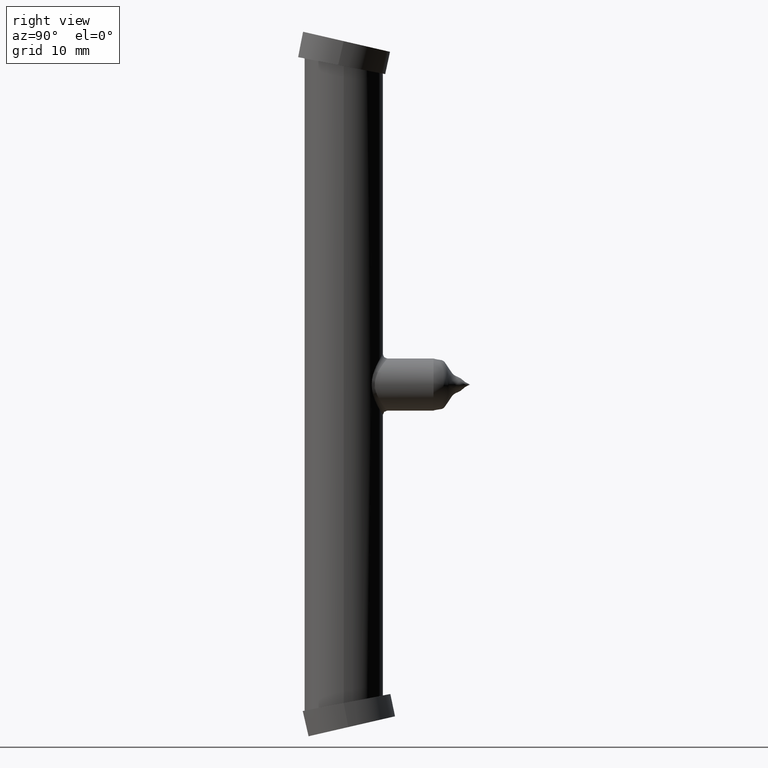
[diagram: clean part render]
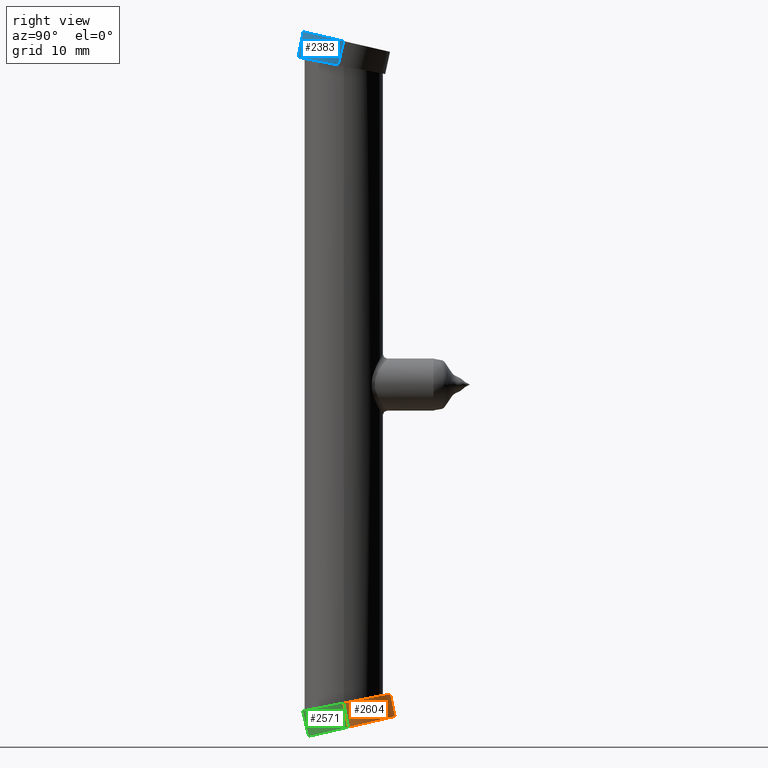
[diagram: same view with three faces highlighted in distinct colors, each labeled with its STEP entity id]
A machine part, right view with three faces highlighted in distinct colors.
Their STEP definitions:

[orange] entity #2604 — the highlighted cylindrical surface (partial cylindrical patch) has radius 5.5 mm, axis along (-0, -0.1908, 0.9816).
#1668 = DIRECTION ( 'NONE',  ( -1.772186124182901200E-018, -0.1908089953765375600, 0.9816271834476654200 ) ) ;
#1669 = VECTOR ( 'NONE', #1668, 1000.000000000000100 ) ;
#1670 = CARTESIAN_POINT ( 'NONE',  ( -5.500000000000000900, 0.5724269861295997500, -39.55376861905850200 ) ) ;
#1671 = LINE ( 'NONE', #1670, #1669 ) ;
#1710 = CARTESIAN_POINT ( 'NONE',  ( 5.499999999999999100, -1.420304845956010800E-014, -36.60888706871550400 ) ) ;
#1757 = CARTESIAN_POINT ( 'NONE',  ( 5.499999999999999100, 0.5357794029348705900, -39.36523314775845300 ) ) ;
#1758 =( BOUNDED_CURVE ( )  B_SPLINE_CURVE ( 3, ( #1757, #1778, #1777, #1776 ),
 .UNSPECIFIED., .F., .T. ) 
 B_SPLINE_CURVE_WITH_KNOTS ( ( 4, 4 ),
 ( 4.712388980384689700, 7.853981633974482800 ),
 .UNSPECIFIED. ) 
 CURVE ( )  GEOMETRIC_REPRESENTATION_ITEM ( )  RATIONAL_B_SPLINE_CURVE ( ( 1.000000000000000000, 0.3333333333333333700, 0.3333333333333333700, 1.000000000000000000 ) ) 
 REPRESENTATION_ITEM ( '' )  );
#1759 = CARTESIAN_POINT ( 'NONE',  ( -5.500000000000000900, 0.5357794029348718100, -39.36523314775845300 ) ) ;
#1760 = CARTESIAN_POINT ( 'NONE',  ( 5.499999999999999100, 0.5357794029348705900, -39.36523314775845300 ) ) ;
#1761 = DIRECTION ( 'NONE',  ( 1.000000000000000000, -3.942553354492743300E-017, 0.0000000000000000000 ) ) ;
#1762 = DIRECTION ( 'NONE',  ( -1.772186124182900800E-018, -0.1908089953765375300, 0.9816271834476653100 ) ) ;
#1763 = CARTESIAN_POINT ( 'NONE',  ( -6.190609831761700200E-016, 0.5724269861295987500, -39.55376861905850200 ) ) ;
#1764 = AXIS2_PLACEMENT_3D ( 'NONE', #1763, #1762, #1761 ) ;
#1776 = CARTESIAN_POINT ( 'NONE',  ( -5.500000000000000900, 0.5357794029348718100, -39.36523314775845300 ) ) ;
#1777 = CARTESIAN_POINT ( 'NONE',  ( -5.500000000000000900, 11.26038325446973200, -36.88926325601642700 ) ) ;
#1778 = CARTESIAN_POINT ( 'NONE',  ( 5.500000000000002700, 11.26038325446973000, -36.88926325601642700 ) ) ;
#1782 = CYLINDRICAL_SURFACE ( 'NONE', #1764, 5.500000000000000000 ) ;
#1791 = CIRCLE ( 'NONE', #1859, 5.500000000000000000 ) ;
#1792 = CARTESIAN_POINT ( 'NONE',  ( -5.500000000000000900, -1.311884628707460400E-014, -36.60888706871550400 ) ) ;
#1798 = DIRECTION ( 'NONE',  ( -1.772186124182901200E-018, -0.1908089953765375600, 0.9816271834476654200 ) ) ;
#1817 = CARTESIAN_POINT ( 'NONE',  ( 5.499999999999999100, 0.5724269861295985300, -39.55376861905850200 ) ) ;
#1831 = VECTOR ( 'NONE', #1798, 1000.000000000000100 ) ;
#1855 = FACE_OUTER_BOUND ( 'NONE', #2466, .T. ) ;
#1856 = DIRECTION ( 'NONE',  ( -1.000000000000000000, 4.810780926864795500E-017, 0.0000000000000000000 ) ) ;
#1857 = DIRECTION ( 'NONE',  ( 1.772186124182901200E-018, 0.1908089953765375900, -0.9816271834476655300 ) ) ;
#1858 = CARTESIAN_POINT ( 'NONE',  ( -6.243775415487187000E-016, -1.387778780781445700E-014, -36.60888706871550400 ) ) ;
#1859 = AXIS2_PLACEMENT_3D ( 'NONE', #1858, #1857, #1856 ) ;
#1866 = LINE ( 'NONE', #1817, #1831 ) ;
#2466 = EDGE_LOOP ( 'NONE', ( #2605, #2514, #2601, #2569 ) ) ;
#2514 = ORIENTED_EDGE ( 'NONE', *, *, #2515, .T. ) ;
#2515 = EDGE_CURVE ( 'NONE', #2608, #2600, #1671, .T. ) ;
#2568 = VERTEX_POINT ( 'NONE', #1710 ) ;
#2569 = ORIENTED_EDGE ( 'NONE', *, *, #2570, .F. ) ;
#2570 = EDGE_CURVE ( 'NONE', #2607, #2568, #1866, .T. ) ;
#2600 = VERTEX_POINT ( 'NONE', #1792 ) ;
#2601 = ORIENTED_EDGE ( 'NONE', *, *, #2602, .T. ) ;
#2602 = EDGE_CURVE ( 'NONE', #2600, #2568, #1791, .T. ) ;
#2604 = ADVANCED_FACE ( 'NONE', ( #1855 ), #1782, .T. ) ;
#2605 = ORIENTED_EDGE ( 'NONE', *, *, #2606, .T. ) ;
#2606 = EDGE_CURVE ( 'NONE', #2607, #2608, #1758, .T. ) ;
#2607 = VERTEX_POINT ( 'NONE', #1760 ) ;
#2608 = VERTEX_POINT ( 'NONE', #1759 ) ;

[blue] entity #2383 — the highlighted cylindrical surface (partial cylindrical patch) has radius 5.5 mm, axis along (-0, 0.225, 0.9744).
#278 = CARTESIAN_POINT ( 'NONE',  ( 5.499999999999999100, -1.401331307937514500E-014, 39.46763557987382900 ) ) ;
#466 = CARTESIAN_POINT ( 'NONE',  ( 4.541394738187119800, -4.236272282476758000, 37.43233498457489400 ) ) ;
#467 = CARTESIAN_POINT ( 'NONE',  ( 2.869099940824906700, -5.240606317322183300, 37.62755774474565100 ) ) ;
#468 =( BOUNDED_CURVE ( )  B_SPLINE_CURVE ( 3, ( #467, #466, #793, #792 ),
 .UNSPECIFIED., .F., .T. ) 
 B_SPLINE_CURVE_WITH_KNOTS ( ( 4, 4 ),
 ( 3.690381766083180400, 4.712388980384689700 ),
 .UNSPECIFIED. ) 
 CURVE ( )  GEOMETRIC_REPRESENTATION_ITEM ( )  RATIONAL_B_SPLINE_CURVE ( ( 1.000000000000000000, 0.9148360866841163100, 0.9148360866841163100, 1.000000000000000000 ) ) 
 REPRESENTATION_ITEM ( '' )  );
#792 = CARTESIAN_POINT ( 'NONE',  ( 5.499999999999999100, -0.6316481114954162200, 36.73166702389426100 ) ) ;
#793 = CARTESIAN_POINT ( 'NONE',  ( 5.500000000000000000, -2.556933847642224300, 37.10590466046490100 ) ) ;
#907 = CARTESIAN_POINT ( 'NONE',  ( 2.692033081535048400, -4.673215139754163700, 40.54653230592943200 ) ) ;
#908 = DIRECTION ( 'NONE',  ( -1.000000000000000000, 4.701784646652799900E-017, 0.0000000000000000000 ) ) ;
#909 = DIRECTION ( 'NONE',  ( 1.772186124182901200E-018, -0.2249510543438579500, -0.9743700647852370200 ) ) ;
#910 = CARTESIAN_POINT ( 'NONE',  ( -4.907663022819033900E-016, -1.423015351387224600E-014, 39.46763557987382900 ) ) ;
#911 = AXIS2_PLACEMENT_3D ( 'NONE', #910, #909, #908 ) ;
#912 = CIRCLE ( 'NONE', #911, 5.500000000000000000 ) ;
#975 = CARTESIAN_POINT ( 'NONE',  ( 2.869099940824906700, -5.240606317322183300, 37.62755774474565100 ) ) ;
#1023 = DIRECTION ( 'NONE',  ( 1.000000000000000000, -3.942553354492743300E-017, 0.0000000000000000000 ) ) ;
#1024 = DIRECTION ( 'NONE',  ( -1.772186124182901200E-018, 0.2249510543438579500, 0.9743700647852370200 ) ) ;
#1025 = CARTESIAN_POINT ( 'NONE',  ( -4.854497439093547100E-016, -0.6748531630315879300, 36.54452538551812100 ) ) ;
#1026 = AXIS2_PLACEMENT_3D ( 'NONE', #1025, #1024, #1023 ) ;
#1027 = CYLINDRICAL_SURFACE ( 'NONE', #1026, 5.500000000000000000 ) ;
#1040 = FACE_OUTER_BOUND ( 'NONE', #2318, .T. ) ;
#1041 = DIRECTION ( 'NONE',  ( -1.772186124182900800E-018, 0.2249510543438579000, 0.9743700647852368000 ) ) ;
#1042 = VECTOR ( 'NONE', #1041, 1000.000000000000200 ) ;
#1043 = CARTESIAN_POINT ( 'NONE',  ( 5.499999999999999100, -0.6748531630315881500, 36.54452538551812100 ) ) ;
#1044 = LINE ( 'NONE', #1043, #1042 ) ;
#1072 = CARTESIAN_POINT ( 'NONE',  ( 5.499999999999999100, -0.6316481114954162200, 36.73166702389426100 ) ) ;
#1087 = CARTESIAN_POINT ( 'NONE',  ( 2.869099940824906700, -5.240606317322183300, 37.62755774474565100 ) ) ;
#1088 = CARTESIAN_POINT ( 'NONE',  ( 2.810726579268732800, -5.045465325059129900, 38.63147112017296100 ) ) ;
#1089 = CARTESIAN_POINT ( 'NONE',  ( 2.751697442516648700, -4.856312981436419200, 39.60457556918743200 ) ) ;
#1090 = CARTESIAN_POINT ( 'NONE',  ( 2.692033081535048400, -4.673215139754163700, 40.54653230592943200 ) ) ;
#1092 =( BOUNDED_CURVE ( )  B_SPLINE_CURVE ( 3, ( #1090, #1089, #1088, #1087 ),
 .UNSPECIFIED., .F., .T. ) 
 B_SPLINE_CURVE_WITH_KNOTS ( ( 4, 4 ),
 ( 0.5114710399728171800, 0.5487891124933875800 ),
 .UNSPECIFIED. ) 
 CURVE ( )  GEOMETRIC_REPRESENTATION_ITEM ( )  RATIONAL_B_SPLINE_CURVE ( ( 1.000000000000000000, 0.9998839501556604500, 0.9998839501556604500, 1.000000000000000000 ) ) 
 REPRESENTATION_ITEM ( '' )  );
#2316 = VERTEX_POINT ( 'NONE', #278 ) ;
#2318 = EDGE_LOOP ( 'NONE', ( #2363, #2366, #2367, #2370 ) ) ;
#2363 = ORIENTED_EDGE ( 'NONE', *, *, #2364, .T. ) ;
#2364 = EDGE_CURVE ( 'NONE', #2365, #2412, #468, .T. ) ;
#2365 = VERTEX_POINT ( 'NONE', #975 ) ;
#2366 = ORIENTED_EDGE ( 'NONE', *, *, #2382, .T. ) ;
#2367 = ORIENTED_EDGE ( 'NONE', *, *, #2368, .T. ) ;
#2368 = EDGE_CURVE ( 'NONE', #2316, #2369, #912, .T. ) ;
#2369 = VERTEX_POINT ( 'NONE', #907 ) ;
#2370 = ORIENTED_EDGE ( 'NONE', *, *, #2371, .T. ) ;
#2371 = EDGE_CURVE ( 'NONE', #2369, #2365, #1092, .T. ) ;
#2382 = EDGE_CURVE ( 'NONE', #2412, #2316, #1044, .T. ) ;
#2383 = ADVANCED_FACE ( 'NONE', ( #1040 ), #1027, .T. ) ;
#2412 = VERTEX_POINT ( 'NONE', #1072 ) ;

[green] entity #2571 — the highlighted cylindrical surface (partial cylindrical patch) has radius 5.5 mm, axis along (-0, -0.1908, 0.9816).
#1664 =( BOUNDED_CURVE ( )  B_SPLINE_CURVE ( 3, ( #1717, #1737, #1736, #1738 ),
 .UNSPECIFIED., .F., .T. ) 
 B_SPLINE_CURVE_WITH_KNOTS ( ( 4, 4 ),
 ( 3.690381766083180800, 4.712388980384689700 ),
 .UNSPECIFIED. ) 
 CURVE ( )  GEOMETRIC_REPRESENTATION_ITEM ( )  RATIONAL_B_SPLINE_CURVE ( ( 1.000000000000000000, 0.9148360866841163100, 0.9148360866841163100, 1.000000000000000000 ) ) 
 REPRESENTATION_ITEM ( '' )  );
#1666 = CARTESIAN_POINT ( 'NONE',  ( 2.869099940824906700, -4.039105014824634100, -40.42142843789507400 ) ) ;
#1672 = DIRECTION ( 'NONE',  ( 1.772186124182901200E-018, 0.1908089953765375900, -0.9816271834476655300 ) ) ;
#1673 = CARTESIAN_POINT ( 'NONE',  ( -6.243775415487187000E-016, -1.387778780781445700E-014, -36.60888706871550400 ) ) ;
#1674 = AXIS2_PLACEMENT_3D ( 'NONE', #1673, #1672, #1727 ) ;
#1675 = CIRCLE ( 'NONE', #1674, 5.500000000000000000 ) ;
#1676 = CARTESIAN_POINT ( 'NONE',  ( 2.692033081535048400, -4.708021296090389100, -37.52403370367648000 ) ) ;
#1683 =( BOUNDED_CURVE ( )  B_SPLINE_CURVE ( 3, ( #1741, #1740, #1739, #1716 ),
 .UNSPECIFIED., .F., .T. ) 
 B_SPLINE_CURVE_WITH_KNOTS ( ( 4, 4 ),
 ( 0.5114710399728171800, 0.5487891124933873500 ),
 .UNSPECIFIED. ) 
 CURVE ( )  GEOMETRIC_REPRESENTATION_ITEM ( )  RATIONAL_B_SPLINE_CURVE ( ( 1.000000000000000000, 0.9998839501556604500, 0.9998839501556604500, 1.000000000000000000 ) ) 
 REPRESENTATION_ITEM ( '' )  );
#1710 = CARTESIAN_POINT ( 'NONE',  ( 5.499999999999999100, -1.420304845956010800E-014, -36.60888706871550400 ) ) ;
#1716 = CARTESIAN_POINT ( 'NONE',  ( 2.869099940824906700, -4.039105014824634100, -40.42142843789507400 ) ) ;
#1717 = CARTESIAN_POINT ( 'NONE',  ( 2.869099940824906700, -4.039105014824634100, -40.42142843789507400 ) ) ;
#1727 = DIRECTION ( 'NONE',  ( -1.000000000000000000, 4.810780926864795500E-017, 0.0000000000000000000 ) ) ;
#1736 = CARTESIAN_POINT ( 'NONE',  ( 5.500000000000000000, -1.375272795997505500, -39.80643431207248300 ) ) ;
#1737 = CARTESIAN_POINT ( 'NONE',  ( 4.541394738187119800, -3.042195969211870700, -40.19127384981775500 ) ) ;
#1738 = CARTESIAN_POINT ( 'NONE',  ( 5.499999999999999100, 0.5357794029348705900, -39.36523314775845300 ) ) ;
#1739 = CARTESIAN_POINT ( 'NONE',  ( 2.810726579268732400, -4.269163204003059600, -39.42493694178720900 ) ) ;
#1740 = CARTESIAN_POINT ( 'NONE',  ( 2.751697442516649200, -4.492161176638330000, -38.45902660330322200 ) ) ;
#1741 = CARTESIAN_POINT ( 'NONE',  ( 2.692033081535048400, -4.708021296090389100, -37.52403370367648000 ) ) ;
#1756 = CYLINDRICAL_SURFACE ( 'NONE', #1786, 5.500000000000000000 ) ;
#1760 = CARTESIAN_POINT ( 'NONE',  ( 5.499999999999999100, 0.5357794029348705900, -39.36523314775845300 ) ) ;
#1784 = DIRECTION ( 'NONE',  ( -1.772186124182900800E-018, -0.1908089953765375300, 0.9816271834476653100 ) ) ;
#1785 = CARTESIAN_POINT ( 'NONE',  ( -6.190609831761700200E-016, 0.5724269861295987500, -39.55376861905850200 ) ) ;
#1786 = AXIS2_PLACEMENT_3D ( 'NONE', #1785, #1784, #1844 ) ;
#1798 = DIRECTION ( 'NONE',  ( -1.772186124182901200E-018, -0.1908089953765375600, 0.9816271834476654200 ) ) ;
#1817 = CARTESIAN_POINT ( 'NONE',  ( 5.499999999999999100, 0.5724269861295985300, -39.55376861905850200 ) ) ;
#1831 = VECTOR ( 'NONE', #1798, 1000.000000000000100 ) ;
#1844 = DIRECTION ( 'NONE',  ( 1.000000000000000000, -3.942553354492743300E-017, 0.0000000000000000000 ) ) ;
#1864 = FACE_OUTER_BOUND ( 'NONE', #2467, .T. ) ;
#1866 = LINE ( 'NONE', #1817, #1831 ) ;
#2467 = EDGE_LOOP ( 'NONE', ( #2468, #2520, #2521, #2504 ) ) ;
#2468 = ORIENTED_EDGE ( 'NONE', *, *, #2469, .T. ) ;
#2469 = EDGE_CURVE ( 'NONE', #2519, #2607, #1664, .T. ) ;
#2504 = ORIENTED_EDGE ( 'NONE', *, *, #2505, .T. ) ;
#2505 = EDGE_CURVE ( 'NONE', #2523, #2519, #1683, .T. ) ;
#2519 = VERTEX_POINT ( 'NONE', #1666 ) ;
#2520 = ORIENTED_EDGE ( 'NONE', *, *, #2570, .T. ) ;
#2521 = ORIENTED_EDGE ( 'NONE', *, *, #2522, .T. ) ;
#2522 = EDGE_CURVE ( 'NONE', #2568, #2523, #1675, .T. ) ;
#2523 = VERTEX_POINT ( 'NONE', #1676 ) ;
#2568 = VERTEX_POINT ( 'NONE', #1710 ) ;
#2570 = EDGE_CURVE ( 'NONE', #2607, #2568, #1866, .T. ) ;
#2571 = ADVANCED_FACE ( 'NONE', ( #1864 ), #1756, .T. ) ;
#2607 = VERTEX_POINT ( 'NONE', #1760 ) ;